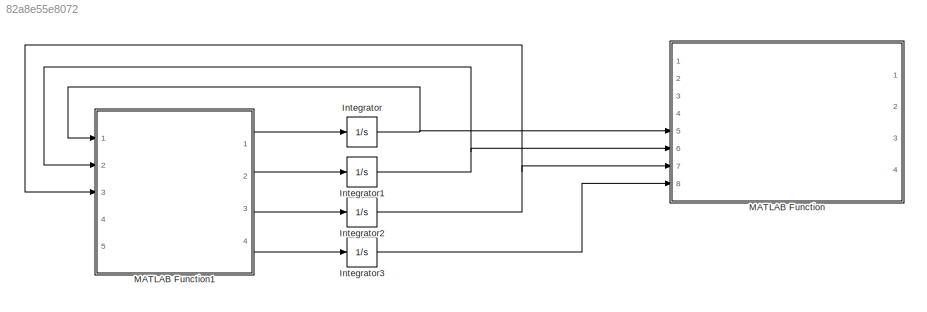
MODEL slx_82a8e55e8072
KIND model
CONFIG AbsTol = auto
CONFIG EnableMultiTasking = off
CONFIG FixedStep = auto
CONFIG MaxStep = auto
CONFIG MinStep = auto
CONFIG RelTol = 1e-3
CONFIG SampleTimeConstraint = Unconstrained
CONFIG SolverName = VariableStepAuto
CONFIG StartTime = 0.0
CONFIG StopTime = 10.0
BLOCK [Integrator] Integrator
  ContinuousStateAttributes = 'V'
  InitialCondition = [0,0,0]
  Ports = [1, 1]
BLOCK [Integrator] Integrator1
  ContinuousStateAttributes = 'V'
  InitialCondition = [0,0,0]
  Ports = [1, 1]
BLOCK [Integrator] Integrator2
  ContinuousStateAttributes = 'V'
  InitialCondition = [0,0,0]
  Ports = [1, 1]
BLOCK [Integrator] Integrator3
  ContinuousStateAttributes = 'V'
  InitialCondition = [0,0,0]
  Ports = [1, 1]
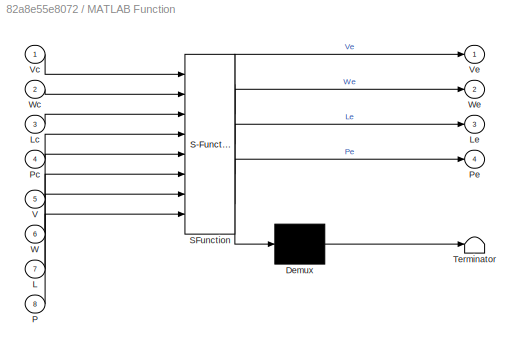
BLOCK [SubSystem] MATLAB Function
  ErrorFcn = Stateflow.Translate.translate
  PermitHierarchicalResolution = ExplicitOnly
  Ports = [8, 4]
  RequestExecContextInheritance = off
  SFBlockType = MATLAB Function
  TreatAsAtomicUnit = on
BLOCK [Demux] MATLAB Function/ Demux 
  Outputs = 1
  Ports = [1, 1]
BLOCK [S-Function] MATLAB Function/ SFunction 
  EnableBusSupport = off
  FunctionName = sf_sfun
  PortCounts = [8 5]
  Ports = [8, 5]
  SFcnIsStateOwnerBlock = off
  SFunctionDeploymentMode = off
  Tag = Stateflow S-Function 2
BLOCK [Terminator] MATLAB Function/ Terminator 
BLOCK [Inport] MATLAB Function/L
  Port = 7
BLOCK [Inport] MATLAB Function/Lc
  Port = 3
BLOCK [Outport] MATLAB Function/Le
  Port = 3
BLOCK [Inport] MATLAB Function/P
  Port = 8
BLOCK [Inport] MATLAB Function/Pc
  Port = 4
BLOCK [Outport] MATLAB Function/Pe
  Port = 4
BLOCK [Inport] MATLAB Function/V
  Port = 5
BLOCK [Inport] MATLAB Function/Vc
BLOCK [Outport] MATLAB Function/Ve
BLOCK [Inport] MATLAB Function/W
  Port = 6
BLOCK [Inport] MATLAB Function/Wc
  Port = 2
BLOCK [Outport] MATLAB Function/We
  Port = 2
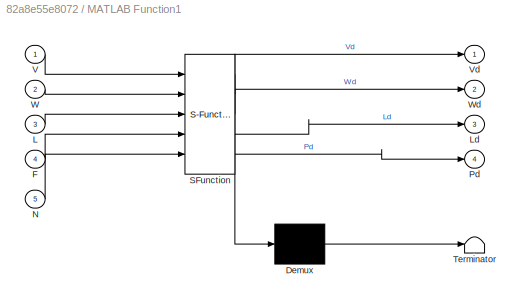
BLOCK [SubSystem] MATLAB Function1
  ErrorFcn = Stateflow.Translate.translate
  PermitHierarchicalResolution = ExplicitOnly
  Ports = [5, 4]
  RequestExecContextInheritance = off
  SFBlockType = MATLAB Function
  TreatAsAtomicUnit = on
BLOCK [Demux] MATLAB Function1/ Demux 
  Outputs = 1
  Ports = [1, 1]
BLOCK [S-Function] MATLAB Function1/ SFunction 
  EnableBusSupport = off
  FunctionName = sf_sfun
  PortCounts = [5 5]
  Ports = [5, 5]
  SFcnIsStateOwnerBlock = off
  SFunctionDeploymentMode = off
  Tag = Stateflow S-Function 1
BLOCK [Terminator] MATLAB Function1/ Terminator 
BLOCK [Inport] MATLAB Function1/F
  Port = 4
BLOCK [Inport] MATLAB Function1/L
  Port = 3
BLOCK [Outport] MATLAB Function1/Ld
  Port = 3
BLOCK [Inport] MATLAB Function1/N
  Port = 5
BLOCK [Outport] MATLAB Function1/Pd
  Port = 4
BLOCK [Inport] MATLAB Function1/V
BLOCK [Outport] MATLAB Function1/Vd
BLOCK [Inport] MATLAB Function1/W
  Port = 2
BLOCK [Outport] MATLAB Function1/Wd
  Port = 2
NET Integrator1:1 -> MATLAB Function1:2, MATLAB Function:6
NET Integrator2:1 -> MATLAB Function1:3, MATLAB Function:7
LINE Integrator3:1 -> MATLAB Function:8
NET Integrator:1 -> MATLAB Function1:1, MATLAB Function:5
LINE MATLAB Function1:1 -> Integrator:1
LINE MATLAB Function1:2 -> Integrator1:1
LINE MATLAB Function1:3 -> Integrator2:1
LINE MATLAB Function1:4 -> Integrator3:1
note: NET lines group one-source signal fan-out (src -> all destinations, sorted); 1:1 wires keep LINE
CHART MATLAB Function1 states=1 transitions=1
  STATE_LABEL 'eML_blk_kernel()'
  STATE_LABEL 'SCRIPT:\nfunction [Vd,Wd,Ld,Pd] = QRotor(V,W,L,F,N)\n%define the mass m, and the inrttia matrix J\nm=1;%Kg\nJ=eye(3,3);\nJinv=J^-1;\nVd=-Skew(W)*V+1/m*F;\nWd=Jinv*Skew(W)*J*W+Jinv*N;\nPd=RPY2Rmat(L)*V;\nLd=RPY2Qmat(L)*W;\nend\n'
CHART MATLAB Function states=1 transitions=1
  STATE_LABEL 'eML_blk_kernel()'
  STATE_LABEL "SCRIPT:\nfunction [Ve,We,Le,Pe] = NLT(Vc,Wc,Lc,Pc,V,W,L,P)\nR=RPY2Rmat(L);\nRt=R';\nRc=RPY2Rmat(Lc);\n\n\nVe=V-Vc;\nWe=W-Wc;\nPe=Rt*(P-Pc);\n%Rc:C->I\n%R:B->I\nLe=Rmat2PRY(Rc'*R);\n"
CHART  states=0 transitions=0
CHART  states=0 transitions=0
